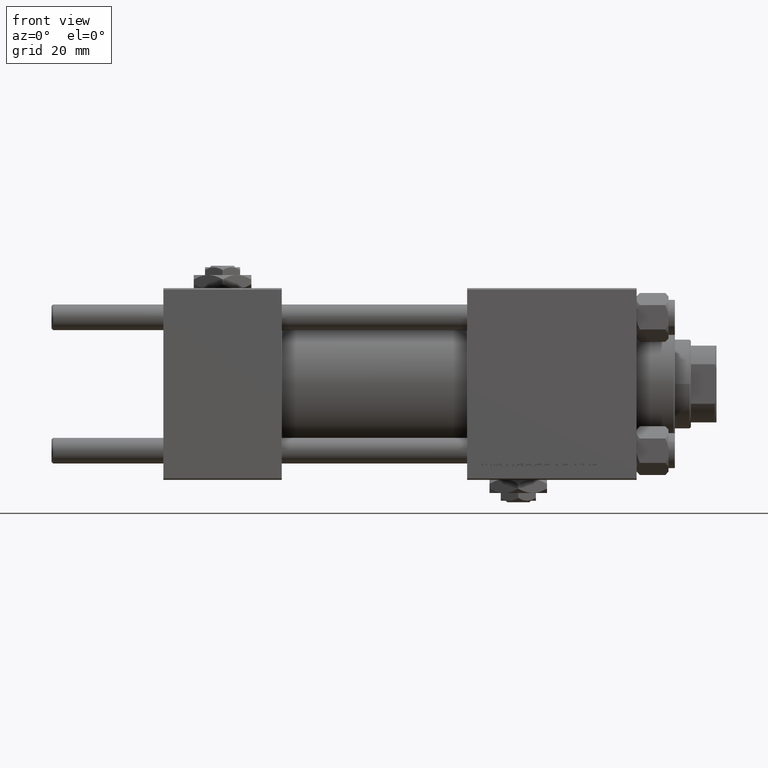
[diagram: clean part render]
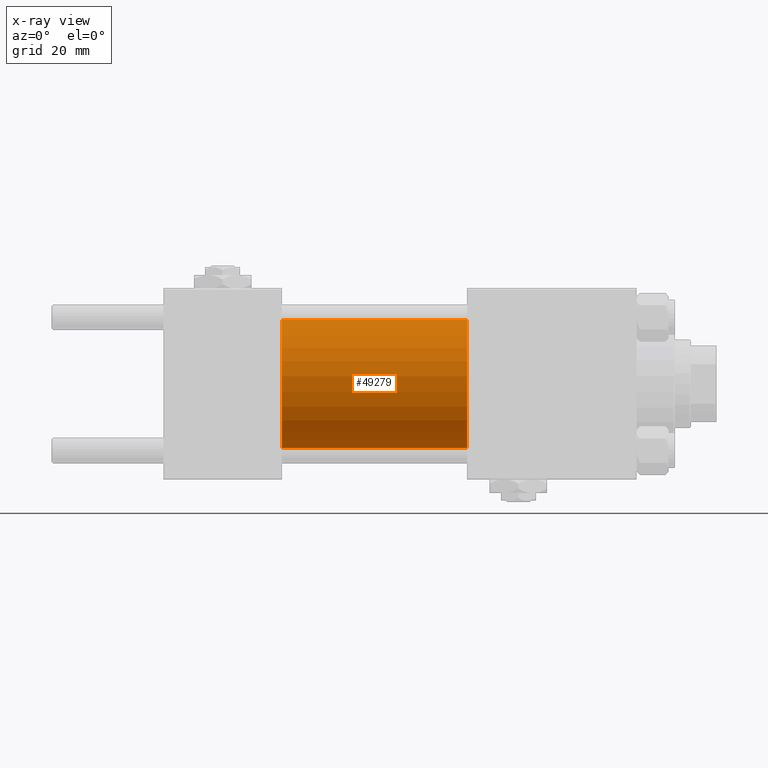
[diagram: x-ray — body ghosted, one internal face saturated and labeled with its STEP entity id]
A machine part, front view, then the same camera in x-ray: the body is ghosted and one INTERNAL B-rep face — a face not visible from any outside direction — is saturated and labeled: STEP entity #49279.
In plain terms, the highlighted cylindrical surface (partial cylindrical patch) has radius 20 mm, axis along (-1, -0, -0).
Its self-contained STEP definition (entity closure, byte-faithful):
#522 = DIRECTION ( 'NONE',  ( -1.000000000000000000, -0.000000000000000000, -0.000000000000000000 ) ) ;
#584 = DIRECTION ( 'NONE',  ( 1.000000000000000000, 0.000000000000000000, 0.000000000000000000 ) ) ;
#3227 = CARTESIAN_POINT ( 'NONE',  ( 95.00000000000000000, 2.449293598294706119E-15, -20.00000000000000000 ) ) ;
#4023 = CIRCLE ( 'NONE', #12411, 20.00000000000000000 ) ;
#5189 = VERTEX_POINT ( 'NONE', #16067 ) ;
#9900 = VECTOR ( 'NONE', #20369, 1000.000000000000000 ) ;
#9944 = ORIENTED_EDGE ( 'NONE', *, *, #51474, .T. ) ;
#12411 = AXIS2_PLACEMENT_3D ( 'NONE', #41336, #16145, #25329 ) ;
#12803 = CYLINDRICAL_SURFACE ( 'NONE', #32528, 20.00000000000000000 ) ;
#15650 = LINE ( 'NONE', #42789, #9900 ) ;
#16067 = CARTESIAN_POINT ( 'NONE',  ( 95.00000000000000000, 0.000000000000000000, 20.00000000000000000 ) ) ;
#16145 = DIRECTION ( 'NONE',  ( 1.000000000000000000, 0.000000000000000000, 0.000000000000000000 ) ) ;
#16411 = ORIENTED_EDGE ( 'NONE', *, *, #45923, .T. ) ;
#16880 = CARTESIAN_POINT ( 'NONE',  ( 95.00000000000000000, 0.000000000000000000, 0.000000000000000000 ) ) ;
#18123 = CIRCLE ( 'NONE', #47448, 20.00000000000000000 ) ;
#19201 = VECTOR ( 'NONE', #42227, 1000.000000000000000 ) ;
#20235 = DIRECTION ( 'NONE',  ( 0.000000000000000000, 0.000000000000000000, 1.000000000000000000 ) ) ;
#20369 = DIRECTION ( 'NONE',  ( -1.000000000000000000, -0.000000000000000000, -0.000000000000000000 ) ) ;
#20776 = VERTEX_POINT ( 'NONE', #35070 ) ;
#21108 = VERTEX_POINT ( 'NONE', #3227 ) ;
#22782 = ORIENTED_EDGE ( 'NONE', *, *, #41224, .F. ) ;
#24452 = CARTESIAN_POINT ( 'NONE',  ( 37.00000000000000000, 2.449293598294706119E-15, -20.00000000000000000 ) ) ;
#25329 = DIRECTION ( 'NONE',  ( 0.000000000000000000, 0.000000000000000000, -1.000000000000000000 ) ) ;
#26215 = CARTESIAN_POINT ( 'NONE',  ( 95.00000000000000000, 2.449293598294706119E-15, -20.00000000000000000 ) ) ;
#26408 = ORIENTED_EDGE ( 'NONE', *, *, #49576, .F. ) ;
#28825 = CARTESIAN_POINT ( 'NONE',  ( 95.00000000000000000, 0.000000000000000000, 0.000000000000000000 ) ) ;
#29867 = FACE_OUTER_BOUND ( 'NONE', #50886, .T. ) ;
#32528 = AXIS2_PLACEMENT_3D ( 'NONE', #28825, #522, #20235 ) ;
#32892 = DIRECTION ( 'NONE',  ( 0.000000000000000000, 0.000000000000000000, -1.000000000000000000 ) ) ;
#35070 = CARTESIAN_POINT ( 'NONE',  ( 37.00000000000000000, 0.000000000000000000, 20.00000000000000000 ) ) ;
#41224 = EDGE_CURVE ( 'NONE', #20776, #50892, #4023, .T. ) ;
#41336 = CARTESIAN_POINT ( 'NONE',  ( 37.00000000000000000, 0.000000000000000000, 0.000000000000000000 ) ) ;
#41698 = LINE ( 'NONE', #26215, #19201 ) ;
#42227 = DIRECTION ( 'NONE',  ( -1.000000000000000000, -0.000000000000000000, -0.000000000000000000 ) ) ;
#42789 = CARTESIAN_POINT ( 'NONE',  ( 95.00000000000000000, 0.000000000000000000, 20.00000000000000000 ) ) ;
#45923 = EDGE_CURVE ( 'NONE', #5189, #21108, #18123, .T. ) ;
#47448 = AXIS2_PLACEMENT_3D ( 'NONE', #16880, #584, #32892 ) ;
#49279 = ADVANCED_FACE ( 'NONE', ( #29867 ), #12803, .F. ) ;
#49576 = EDGE_CURVE ( 'NONE', #5189, #20776, #15650, .T. ) ;
#50886 = EDGE_LOOP ( 'NONE', ( #16411, #9944, #22782, #26408 ) ) ;
#50892 = VERTEX_POINT ( 'NONE', #24452 ) ;
#51474 = EDGE_CURVE ( 'NONE', #21108, #50892, #41698, .T. ) ;